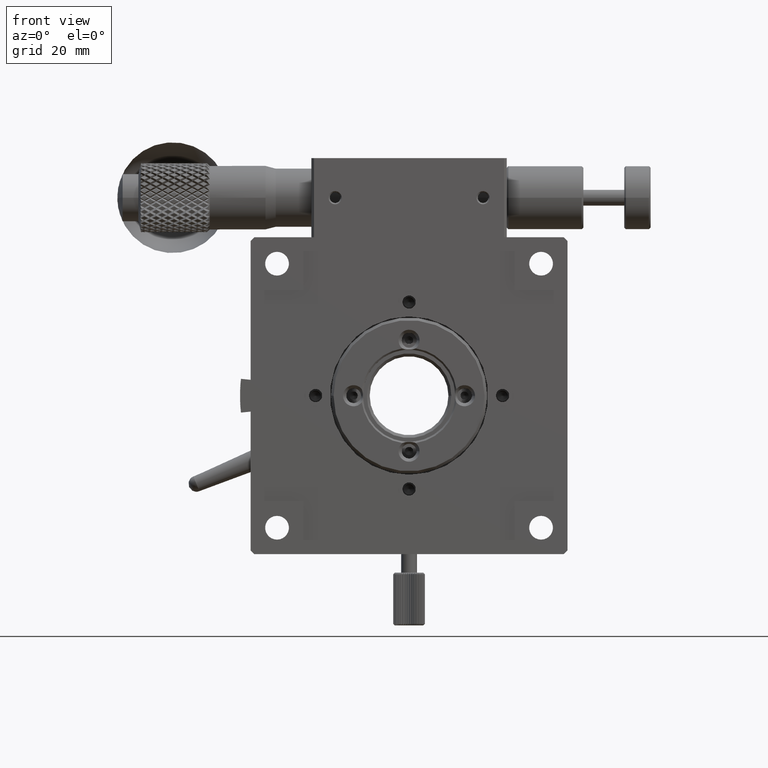
[diagram: clean part render]
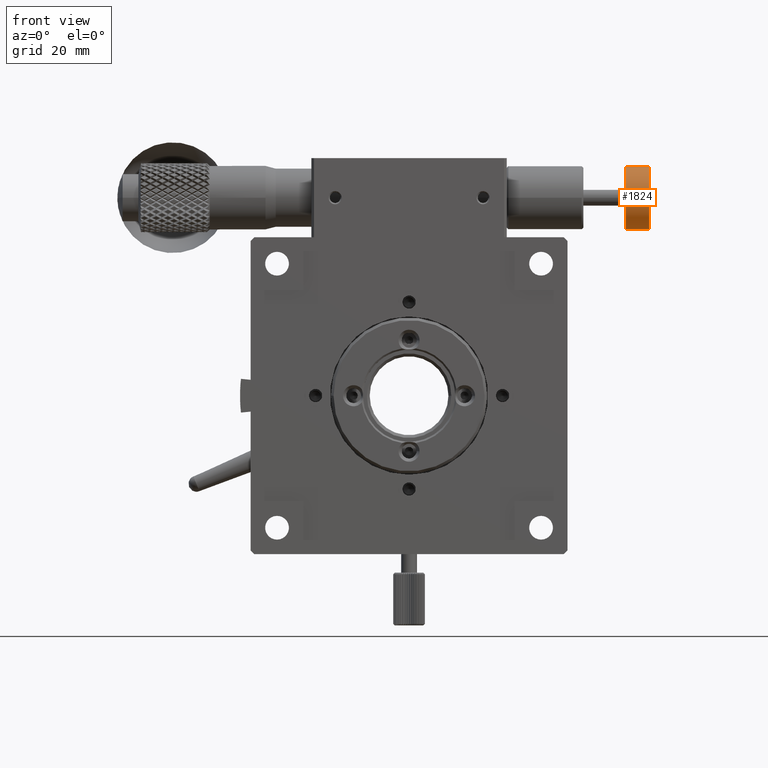
[diagram: same view with one face highlighted and labeled with its STEP entity id]
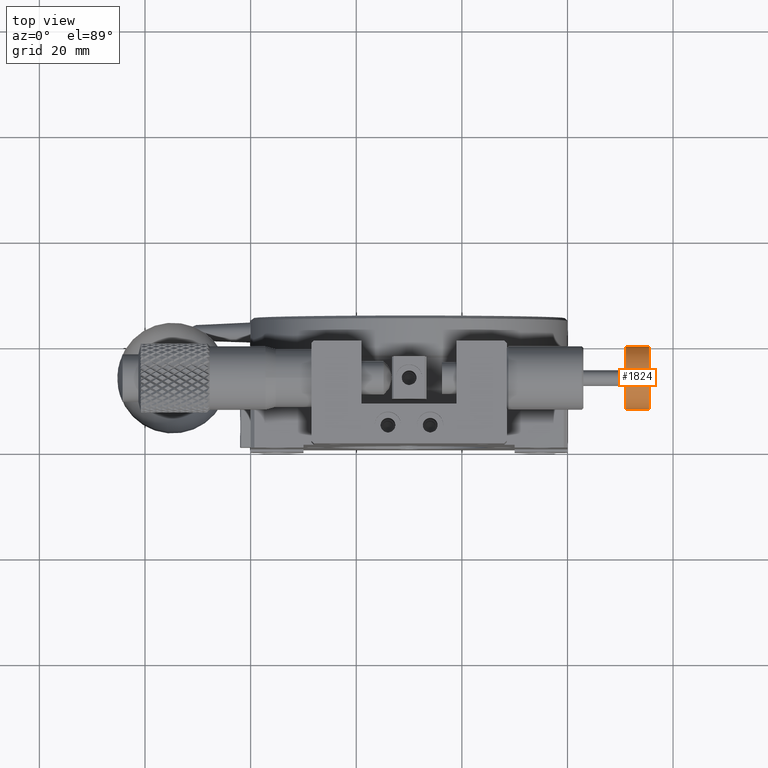
[diagram: same view with one face highlighted and labeled with its STEP entity id]
A machine part, front view. The second image highlights one B-rep face of the part: STEP entity #1824.
A second angle (top view) of the same face is appended — the face is thin or edge-on in the first view.
In plain terms, the highlighted cylindrical surface (bore or boss wall) has radius 6 mm, axis along (1, 0, 0).
Its self-contained STEP definition (entity closure, byte-faithful):
#1824 = ADVANCED_FACE ( 'NONE', ( #15627, #52727 ), #80582, .T. ) ;
#2391 = VERTEX_POINT ( 'NONE', #45989 ) ;
#9924 = DIRECTION ( 'NONE',  ( 0.000000000000000000, -1.000000000000000000, 0.000000000000000000 ) ) ;
#15627 = FACE_OUTER_BOUND ( 'NONE', #57385, .T. ) ;
#17276 = ORIENTED_EDGE ( 'NONE', *, *, #18233, .T. ) ;
#18233 = EDGE_CURVE ( 'NONE', #36635, #36635, #72271, .T. ) ;
#30122 = CARTESIAN_POINT ( 'NONE',  ( 75.44999999999998863, 7.000000000000000888, 7.500000000000000000 ) ) ;
#35127 = DIRECTION ( 'NONE',  ( 0.000000000000000000, -1.000000000000000000, 0.000000000000000000 ) ) ;
#36635 = VERTEX_POINT ( 'NONE', #30122 ) ;
#37076 = EDGE_LOOP ( 'NONE', ( #17276 ) ) ;
#38128 = ORIENTED_EDGE ( 'NONE', *, *, #88080, .F. ) ;
#40379 = AXIS2_PLACEMENT_3D ( 'NONE', #88007, #52285, #58316 ) ;
#42080 = DIRECTION ( 'NONE',  ( -1.000000000000000000, -0.000000000000000000, -0.000000000000000000 ) ) ;
#42654 = AXIS2_PLACEMENT_3D ( 'NONE', #77337, #42080, #35127 ) ;
#44638 = CIRCLE ( 'NONE', #74271, 5.999999999971805664 ) ;
#45989 = CARTESIAN_POINT ( 'NONE',  ( 71.04999999998608473, 7.000000000028195224, 7.500000000000000000 ) ) ;
#52169 = CARTESIAN_POINT ( 'NONE',  ( 71.04999999998608473, 13.00000000000000178, 7.500000000000000000 ) ) ;
#52285 = DIRECTION ( 'NONE',  ( 1.000000000000000000, 0.000000000000000000, 0.000000000000000000 ) ) ;
#52727 = FACE_OUTER_BOUND ( 'NONE', #37076, .T. ) ;
#57385 = EDGE_LOOP ( 'NONE', ( #38128 ) ) ;
#58316 = DIRECTION ( 'NONE',  ( 0.000000000000000000, -1.000000000000000000, 0.000000000000000000 ) ) ;
#67450 = DIRECTION ( 'NONE',  ( -1.000000000000000000, -0.000000000000000000, -0.000000000000000000 ) ) ;
#72271 = CIRCLE ( 'NONE', #42654, 6.000000000000000000 ) ;
#74271 = AXIS2_PLACEMENT_3D ( 'NONE', #52169, #67450, #9924 ) ;
#77337 = CARTESIAN_POINT ( 'NONE',  ( 75.44999999999998863, 13.00000000000000178, 7.500000000000000000 ) ) ;
#80582 = CYLINDRICAL_SURFACE ( 'NONE', #40379, 6.000000000000000000 ) ;
#88007 = CARTESIAN_POINT ( 'NONE',  ( 75.75000000000000000, 13.00000000000000178, 7.500000000000000000 ) ) ;
#88080 = EDGE_CURVE ( 'NONE', #2391, #2391, #44638, .T. ) ;